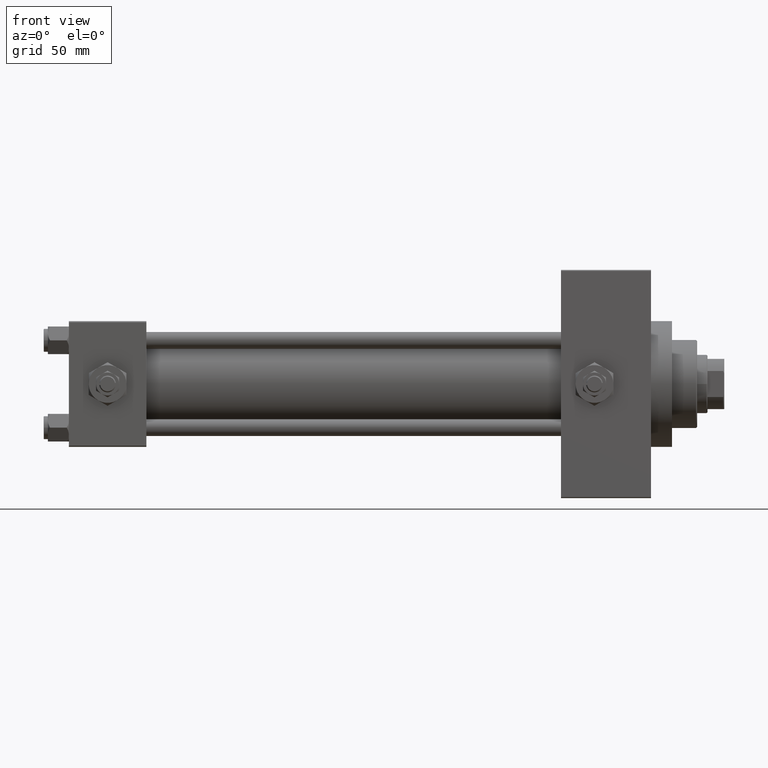
[diagram: clean part render]
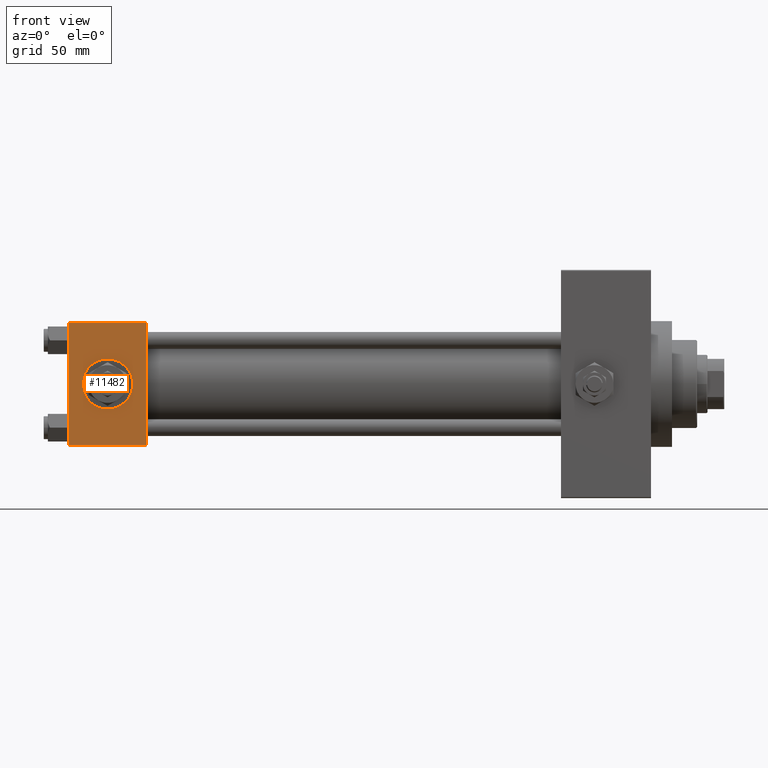
[diagram: same view with one face highlighted and labeled with its STEP entity id]
A machine part, front view. The second image highlights one B-rep face of the part: STEP entity #11482.
In plain terms, the highlighted planar face has unit normal (0, 1, 0).
Its self-contained STEP definition (entity closure, byte-faithful):
#355 = FACE_OUTER_BOUND ( 'NONE', #15486, .T. ) ;
#460 = CARTESIAN_POINT ( 'NONE',  ( 0.000000000000000000, -30.00000000000000000, 29.99999999999999289 ) ) ;
#2315 = DIRECTION ( 'NONE',  ( 0.000000000000000000, 0.000000000000000000, -1.000000000000000000 ) ) ;
#3307 = DIRECTION ( 'NONE',  ( -1.000000000000000000, 0.000000000000000000, 0.000000000000000000 ) ) ;
#3816 = EDGE_CURVE ( 'NONE', #5183, #4639, #12187, .T. ) ;
#4373 = EDGE_CURVE ( 'NONE', #31539, #27298, #37520, .T. ) ;
#4639 = VERTEX_POINT ( 'NONE', #11736 ) ;
#5183 = VERTEX_POINT ( 'NONE', #30053 ) ;
#7848 = DIRECTION ( 'NONE',  ( -0.000000000000000000, 1.000000000000000000, 0.000000000000000000 ) ) ;
#8769 = VECTOR ( 'NONE', #27359, 1000.000000000000000 ) ;
#8863 = DIRECTION ( 'NONE',  ( 1.000000000000000000, 0.000000000000000000, 0.000000000000000000 ) ) ;
#9565 = DIRECTION ( 'NONE',  ( 0.000000000000000000, -1.000000000000000000, -8.673617379884036705E-17 ) ) ;
#9920 = CARTESIAN_POINT ( 'NONE',  ( 37.00000000000000000, -30.00000000000000000, 29.49999999999999289 ) ) ;
#10051 = CARTESIAN_POINT ( 'NONE',  ( 18.50000000000000000, -30.00000000000000000, 0.000000000000000000 ) ) ;
#10064 = DIRECTION ( 'NONE',  ( 0.000000000000000000, 0.000000000000000000, -1.000000000000000000 ) ) ;
#10865 = DIRECTION ( 'NONE',  ( 0.000000000000000000, -0.000000000000000000, 1.000000000000000000 ) ) ;
#11482 = ADVANCED_FACE ( 'NONE', ( #22545, #355 ), #19308, .F. ) ;
#11736 = CARTESIAN_POINT ( 'NONE',  ( 0.000000000000000000, -30.00000000000000000, -29.50000000000001776 ) ) ;
#12122 = LINE ( 'NONE', #31528, #23250 ) ;
#12187 = LINE ( 'NONE', #460, #8769 ) ;
#13793 = EDGE_CURVE ( 'NONE', #4639, #27298, #12122, .T. ) ;
#14301 = CARTESIAN_POINT ( 'NONE',  ( 18.50000000000000000, -30.00000000000000000, 0.000000000000000000 ) ) ;
#15486 = EDGE_LOOP ( 'NONE', ( #20651, #34377, #38481, #40162 ) ) ;
#16149 = EDGE_CURVE ( 'NONE', #39363, #23081, #30470, .T. ) ;
#16403 = ORIENTED_EDGE ( 'NONE', *, *, #16149, .F. ) ;
#19308 = PLANE ( 'NONE',  #43134 ) ;
#20651 = ORIENTED_EDGE ( 'NONE', *, *, #3816, .T. ) ;
#22545 = FACE_BOUND ( 'NONE', #43676, .T. ) ;
#22806 = DIRECTION ( 'NONE',  ( 0.000000000000000000, 0.000000000000000000, -1.000000000000000000 ) ) ;
#23081 = VERTEX_POINT ( 'NONE', #46121 ) ;
#23250 = VECTOR ( 'NONE', #8863, 1000.000000000000000 ) ;
#27298 = VERTEX_POINT ( 'NONE', #35498 ) ;
#27359 = DIRECTION ( 'NONE',  ( 0.000000000000000000, 0.000000000000000000, -1.000000000000000000 ) ) ;
#28581 = VECTOR ( 'NONE', #22806, 1000.000000000000000 ) ;
#28663 = CIRCLE ( 'NONE', #46170, 12.00000000000000178 ) ;
#30053 = CARTESIAN_POINT ( 'NONE',  ( 0.000000000000000000, -30.00000000000000000, 29.49999999999999289 ) ) ;
#30203 = CARTESIAN_POINT ( 'NONE',  ( 37.00000000000000000, -30.00000000000000000, 29.49999999999999289 ) ) ;
#30470 = CIRCLE ( 'NONE', #46397, 12.00000000000000178 ) ;
#30775 = CARTESIAN_POINT ( 'NONE',  ( 37.00000000000000000, -30.00000000000000000, 29.99999999999999289 ) ) ;
#31528 = CARTESIAN_POINT ( 'NONE',  ( 37.00000000000000000, -30.00000000000000000, -29.50000000000001776 ) ) ;
#31539 = VERTEX_POINT ( 'NONE', #9920 ) ;
#34377 = ORIENTED_EDGE ( 'NONE', *, *, #13793, .T. ) ;
#35498 = CARTESIAN_POINT ( 'NONE',  ( 37.00000000000000000, -30.00000000000000000, -29.50000000000001776 ) ) ;
#36185 = DIRECTION ( 'NONE',  ( 0.000000000000000000, -1.000000000000000000, -8.673617379884036705E-17 ) ) ;
#36446 = VECTOR ( 'NONE', #3307, 1000.000000000000000 ) ;
#37520 = LINE ( 'NONE', #30775, #28581 ) ;
#37742 = CARTESIAN_POINT ( 'NONE',  ( 37.00000000000000000, -30.00000000000000000, 29.99999999999999289 ) ) ;
#38481 = ORIENTED_EDGE ( 'NONE', *, *, #4373, .F. ) ;
#39363 = VERTEX_POINT ( 'NONE', #44451 ) ;
#40162 = ORIENTED_EDGE ( 'NONE', *, *, #42753, .T. ) ;
#40916 = LINE ( 'NONE', #30203, #36446 ) ;
#41794 = ORIENTED_EDGE ( 'NONE', *, *, #47657, .F. ) ;
#42753 = EDGE_CURVE ( 'NONE', #31539, #5183, #40916, .T. ) ;
#43134 = AXIS2_PLACEMENT_3D ( 'NONE', #37742, #7848, #10865 ) ;
#43676 = EDGE_LOOP ( 'NONE', ( #16403, #41794 ) ) ;
#44451 = CARTESIAN_POINT ( 'NONE',  ( 18.50000000000000000, -30.00000000000000000, -12.00000000000000178 ) ) ;
#46121 = CARTESIAN_POINT ( 'NONE',  ( 18.50000000000000000, -30.00000000000000000, 12.00000000000000178 ) ) ;
#46170 = AXIS2_PLACEMENT_3D ( 'NONE', #14301, #9565, #10064 ) ;
#46397 = AXIS2_PLACEMENT_3D ( 'NONE', #10051, #36185, #2315 ) ;
#47657 = EDGE_CURVE ( 'NONE', #23081, #39363, #28663, .T. ) ;